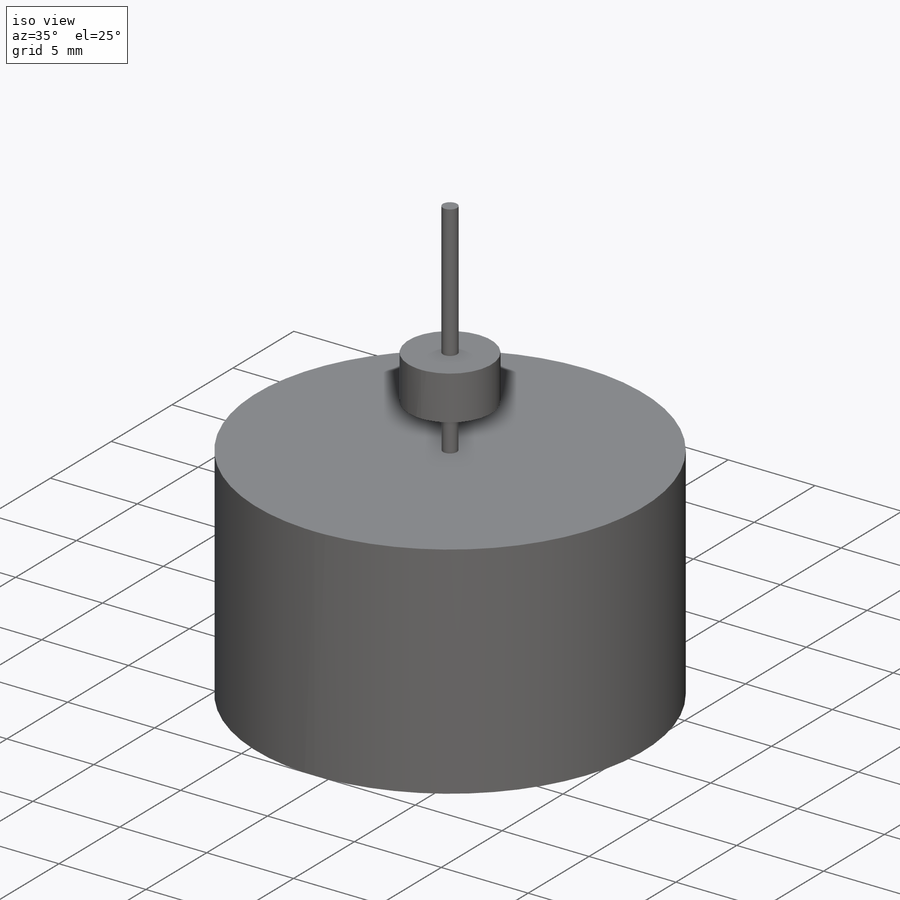
[diagram: iso view]
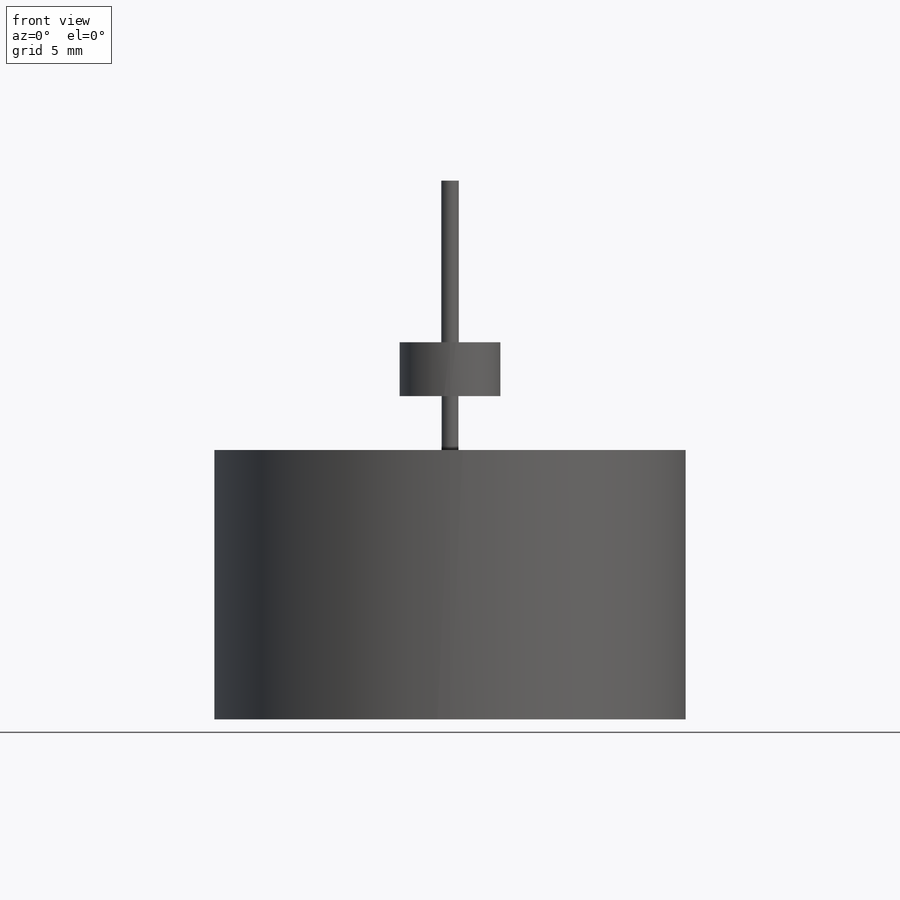
[diagram: front view]
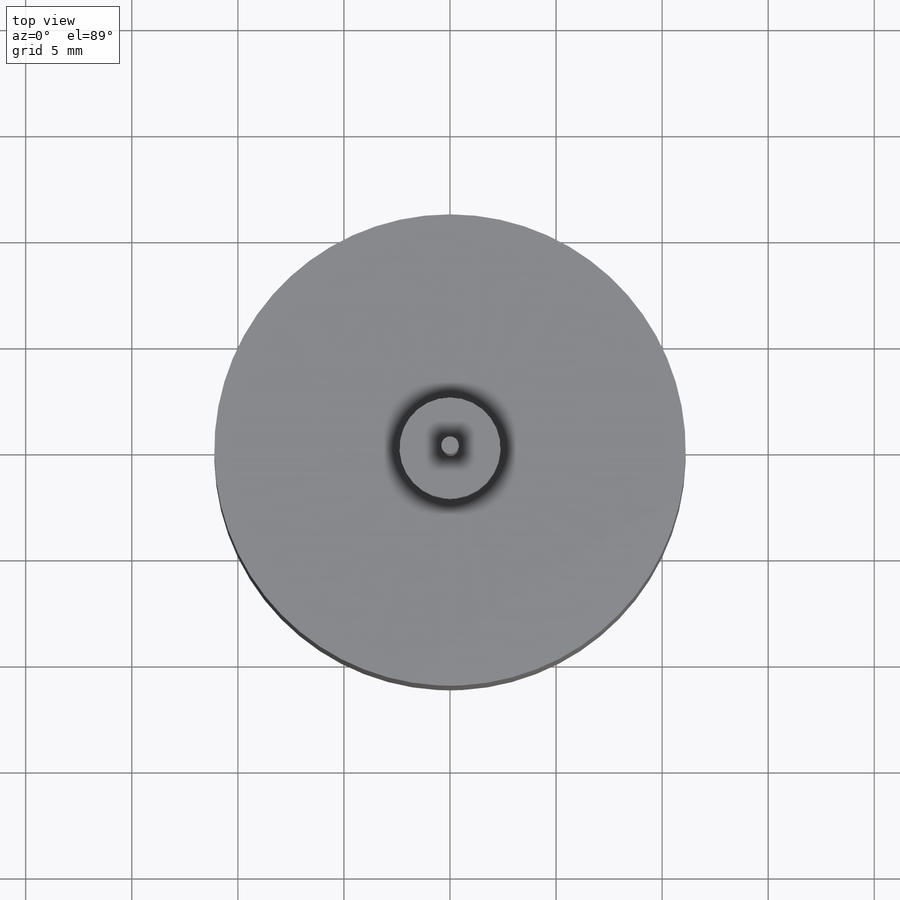
[diagram: top view]
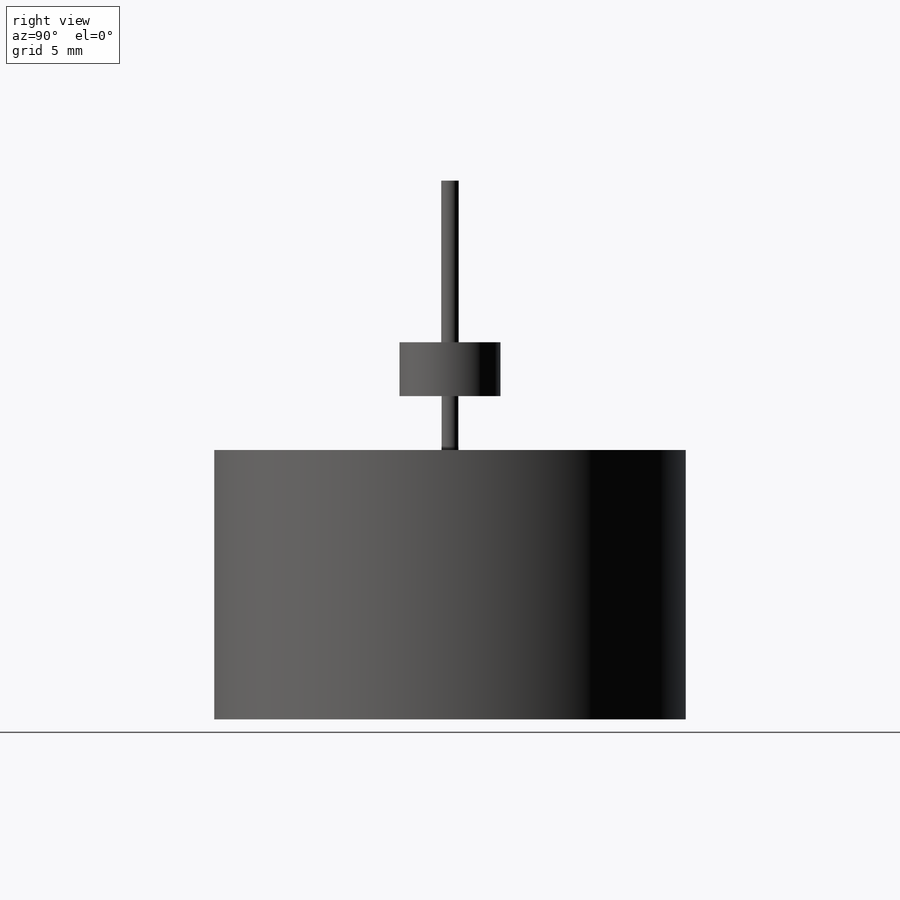
[diagram: right view]
SOLIDWORKS PART (.sldprt)
format: sldprt  version: not decoded by parser v0  size: 175,616 bytes
history: native  units: mm
features: sketch x4, extrude x4, material x1 (+16 scaffold rows collapsed)
feature tree (25):
  scaffold x16  (default folders/planes/origin — collapsed)
  material  "ASTM A36 Steel"
  sketch  "Sketch1"  dims[D1=22.225mm]
  extrude  "Boss-Extrude1"  Depth=12.7mm
  sketch  "Sketch2"  dims[D1=~0.79375mm]
  extrude  "Boss-Extrude2"  Depth=2.54mm
  sketch  "Sketch3"  dims[D1=4.7625mm]
  extrude  "Boss-Extrude3"  Depth=2.54mm
  sketch  "Sketch4"  dims[D1=~0.819355mm]
  extrude  "Boss-Extrude4"  Depth=7.62mm
decode coverage: 8 of 8 modeling features carry decoded parameters
note: ~ marks probable driven/reference dimensions
note: suppression state not decoded; provenance and decode notes live in map.json
